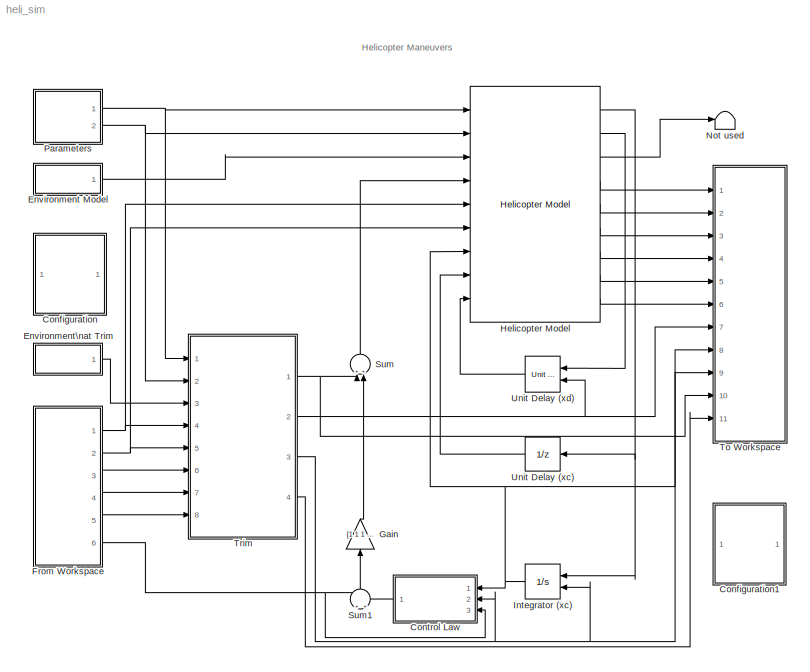
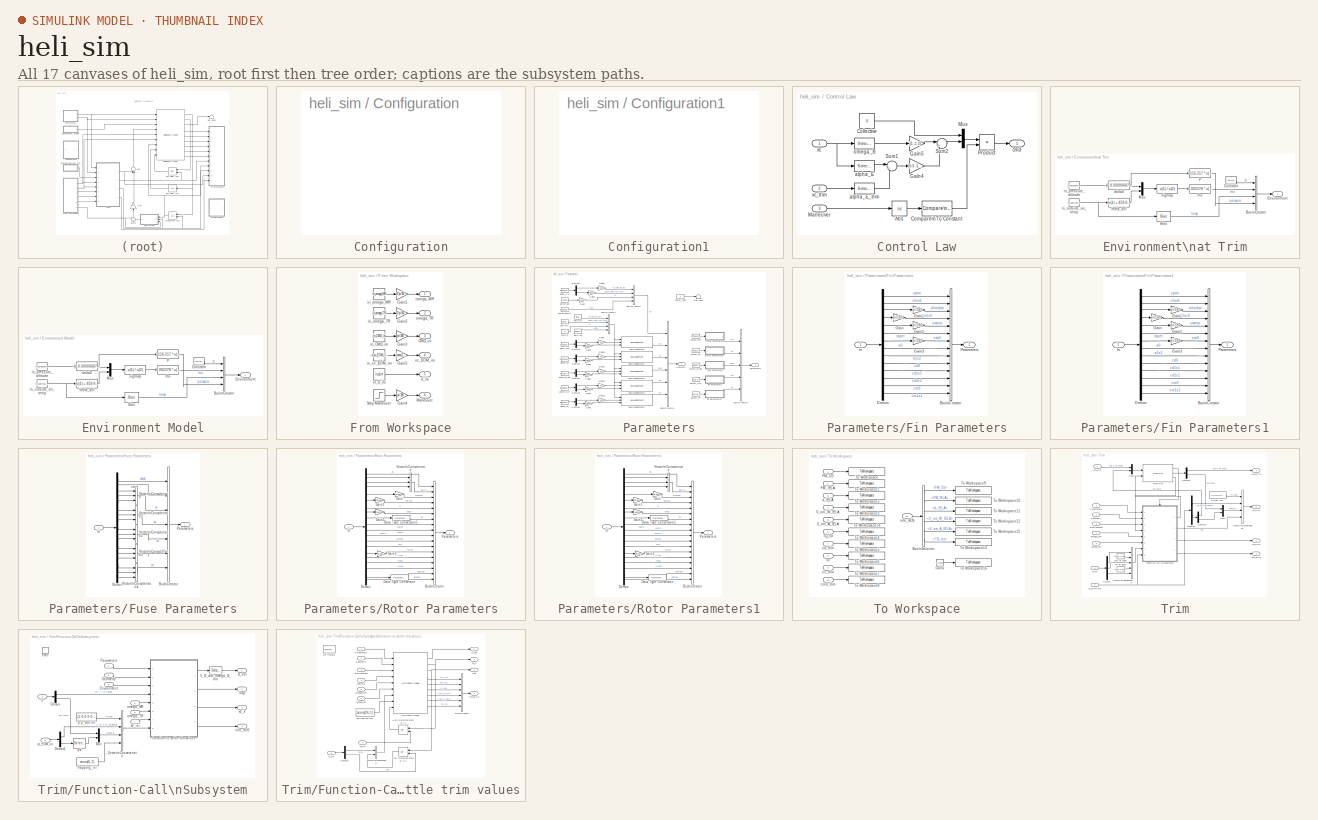
[diagram: thumbnail index - all 17 canvases of the model, root first then tree order]
MODEL heli_sim
KIND model
CONFIG PostLoadFcn = if exist('helicopter_sim.mat', 'file')\n    load helicopter_sim.mat;\nend
BLOCK [SubSystem] Configuration
  FunctionWithSeparateData = off
  MaskDisplay = disp('Double-click\\nto configure\\nthe\\nsimulation')
  MaskHideContents = off
  MaskIconFrame = on
  MaskIconOpaque = on
  MaskIconRotate = none
  MaskIconUnits = autoscale
  MaskPortRotate = default
  MinAlgLoopOccurrences = off
  Opaque = off
  OpenFcn = gui_HelicopterSim;
  Ports = []
  PropExecContextOutsideSubsystem = off
  RTWSystemCode = Auto
  RequestExecContextInheritance = off
  SID = 1
BLOCK [SubSystem] Configuration1
  FunctionWithSeparateData = off
  MaskDisplay = disp('Double-click\\nto display\\nthe\\ngraphs')
  MaskHideContents = off
  MaskIconFrame = on
  MaskIconOpaque = on
  MaskIconRotate = none
  MaskIconUnits = autoscale
  MaskPortRotate = default
  MinAlgLoopOccurrences = off
  Opaque = off
  OpenFcn = graphs_Helicopter_sim;
  Ports = []
  PropExecContextOutsideSubsystem = off
  RTWSystemCode = Auto
  RequestExecContextInheritance = off
  SID = 2
BLOCK [SubSystem] Control Law
  FunctionWithSeparateData = off
  MaskHideContents = off
  MinAlgLoopOccurrences = off
  Opaque = off
  Ports = [3, 1]
  PropExecContextOutsideSubsystem = off
  RTWSystemCode = Auto
  RequestExecContextInheritance = off
  SID = 5
BLOCK [Abs] Control Law/Abs
  SID = 9
  SaturateOnIntegerOverflow = off
BLOCK [Constant] Control Law/Collective
  SID = 10
  Value = 0
BLOCK [Reference] Control Law/Compare\nTo Constant  REF=simulink/Logic and Bit\nOperations/Compare\nTo Constant
  FunctionWithSeparateData = off
  GeneratePreprocessorConditionals = off
  LogicOutDataTypeMode = boolean
  Ports = [1, 1]
  RTWMemSecDataConstants = Inherit from model
  RTWMemSecDataInternal = Inherit from model
  RTWMemSecDataParameters = Inherit from model
  RTWMemSecFuncExecute = Inherit from model
  RTWMemSecFuncInitTerm = Inherit from model
  SID = 11
  ShowPortLabels = FromPortIcon
  SourceBlock = simulink/Logic and Bit\nOperations/Compare\nTo Constant
  SourceType = Compare To Constant
  SystemSampleTime = -1
  ZeroCross = off
  const = 1e-10
  relop = <
BLOCK [Gain] Control Law/Gain4
  Gain = [0.5 -1 4]
  OutDataTypeStr = Inherit: Inherit via internal rule
  ParamDataTypeStr = Inherit: Inherit via internal rule
  SID = 12
  SaturateOnIntegerOverflow = off
BLOCK [Gain] Control Law/Gain5
  Gain = [1 -1 2]
  OutDataTypeStr = Inherit: Inherit via internal rule
  ParamDataTypeStr = Inherit: Inherit via internal rule
  SID = 13
  SaturateOnIntegerOverflow = off
BLOCK [Inport] Control Law/Maneuver
  IconDisplay = Port number
  Port = 3
  SID = 8
BLOCK [Mux] Control Law/Mux
  DisplayOption = bar
  Inputs = 2
  Ports = [2, 1]
  SID = 14
BLOCK [Product] Control Law/Product
  InputSameDT = off
  OutDataTypeStr = Inherit: Inherit via internal rule
  Ports = [2, 1]
  SID = 15
  SaturateOnIntegerOverflow = off
BLOCK [Sum] Control Law/Sum1
  IconShape = round
  InputSameDT = off
  Inputs = |+-
  OutDataTypeStr = Inherit: Inherit via internal rule
  Ports = [2, 1]
  SID = 16
  SaturateOnIntegerOverflow = off
BLOCK [Sum] Control Law/Sum2
  IconShape = round
  InputSameDT = off
  Inputs = |++
  OutDataTypeStr = Inherit: Inherit via internal rule
  Ports = [2, 1]
  SID = 17
  SaturateOnIntegerOverflow = off
BLOCK [Selector] Control Law/alpha_E
  IndexOptions = Index vector (dialog)
  Indices = [18:20]
  InputPortWidth = 26
  OutputSizes = 1
  Ports = [1, 1]
  SID = 18
BLOCK [Selector] Control Law/alpha_E_trim
  IndexOptions = Index vector (dialog)
  Indices = [18:20]
  InputPortWidth = 26
  OutputSizes = 1
  Ports = [1, 1]
  SID = 19
BLOCK [Outport] Control Law/cmd
  IconDisplay = Port number
  SID = 21
BLOCK [Selector] Control Law/omega_B
  IndexOptions = Index vector (dialog)
  Indices = [15:17]
  InputPortWidth = 26
  OutputSizes = 1
  Ports = [1, 1]
  SID = 20
BLOCK [Inport] Control Law/xc
  IconDisplay = Port number
  SID = 6
BLOCK [Inport] Control Law/xc_trim
  IconDisplay = Port number
  Port = 2
  SID = 7
BLOCK [SubSystem] Environment Model
  FunctionWithSeparateData = off
  MaskHideContents = off
  MinAlgLoopOccurrences = off
  Opaque = off
  Ports = [0, 1]
  PropExecContextOutsideSubsystem = off
  RTWSystemCode = Auto
  RequestExecContextInheritance = off
  SID = 36
BLOCK [Bias] Environment Model/Bias
  Bias = 459.67
  SID = 37
  SaturateOnIntegerOverflow = off
BLOCK [BusCreator] Environment Model/Bus\nCreator
  DisplayOption = bar
  NonVirtualBus = on
  OutDataTypeStr = Bus: Environment
  Ports = [4, 1]
  SID = 38
BLOCK [Constant] Environment Model/Constant
  SID = 39
  Value = 32.174
BLOCK [Outport] Environment Model/Environment
  IconDisplay = Port number
  OutDataTypeStr = Bus: Environment
  SID = 48
BLOCK [Mux] Environment Model/Mux
  DisplayOption = bar
  Inputs = 2
  Ports = [2, 1]
  SID = 40
BLOCK [Fcn] Environment Model/P
  Expr = 2116.217 * u(1)
  SID = 41
BLOCK [Fcn] Environment Model/delta0
  Expr = (1-0.000006875*u(1))^5.256
  SID = 42
BLOCK [Constant] Environment Model/in_outside_air_temp
  SID = 43
  Value = in_outside_air_temp
BLOCK [Constant] Environment Model/in_pressure_altitude
  SID = 44
  Value = in_pressure_altitude
BLOCK [Fcn] Environment Model/rho
  Expr = 0.002378 * u(1)
  SID = 45
BLOCK [Fcn] Environment Model/sigmap
  Expr = u(1) / u(2)
  SID = 46
BLOCK [Fcn] Environment Model/theta_act
  Expr = (u(1) + 459.67) / (59 + 459.67)
  SID = 47
BLOCK [SubSystem] Environment\nat Trim
  FunctionWithSeparateData = off
  MaskHideContents = off
  MinAlgLoopOccurrences = off
  Opaque = off
  Ports = [0, 1]
  PropExecContextOutsideSubsystem = off
  RTWSystemCode = Auto
  RequestExecContextInheritance = off
  SID = 23
BLOCK [Bias] Environment\nat Trim/Bias
  Bias = 459.67
  SID = 24
  SaturateOnIntegerOverflow = off
BLOCK [BusCreator] Environment\nat Trim/Bus\nCreator
  DisplayOption = bar
  NonVirtualBus = on
  OutDataTypeStr = Bus: Environment
  Ports = [4, 1]
  SID = 25
BLOCK [Constant] Environment\nat Trim/Constant
  SID = 26
  Value = 32.174
BLOCK [Outport] Environment\nat Trim/Environment
  IconDisplay = Port number
  OutDataTypeStr = Bus: Environment
  SID = 35
BLOCK [Mux] Environment\nat Trim/Mux
  DisplayOption = bar
  Inputs = 2
  Ports = [2, 1]
  SID = 27
BLOCK [Fcn] Environment\nat Trim/P
  Expr = 2116.217 * u(1)
  SID = 28
BLOCK [Fcn] Environment\nat Trim/delta0
  Expr = (1-0.000006875*u(1))^5.256
  SID = 29
BLOCK [Constant] Environment\nat Trim/in_outside_air_temp
  SID = 30
  Value = in_outside_air_temp
BLOCK [Constant] Environment\nat Trim/in_pressure_altitude
  SID = 31
  Value = in_pressure_altitude
BLOCK [Fcn] Environment\nat Trim/rho
  Expr = 0.002378 * u(1)
  SID = 32
BLOCK [Fcn] Environment\nat Trim/sigmap
  Expr = u(1) / u(2)
  SID = 33
BLOCK [Fcn] Environment\nat Trim/theta_act
  Expr = (u(1) + 459.67) / (59 + 459.67)
  SID = 34
BLOCK [SubSystem] From Workspace
  FunctionWithSeparateData = off
  MaskHideContents = off
  MinAlgLoopOccurrences = off
  Opaque = off
  Ports = [0, 6]
  PropExecContextOutsideSubsystem = off
  RTWSystemCode = Auto
  RequestExecContextInheritance = off
  SID = 160
BLOCK [Outport] From Workspace/CMD_ini
  IconDisplay = Port number
  Port = 3
  SID = 174
BLOCK [Gain] From Workspace/Gain1
  Gain = 2*pi/60
  OutDataTypeStr = Inherit: Inherit via internal rule
  ParamDataTypeStr = Inherit: Inherit via internal rule
  SID = 161
  SaturateOnIntegerOverflow = off
BLOCK [Gain] From Workspace/Gain2
  Gain = 2*pi/60
  OutDataTypeStr = Inherit: Inherit via internal rule
  ParamDataTypeStr = Inherit: Inherit via internal rule
  SID = 162
  SaturateOnIntegerOverflow = off
BLOCK [Gain] From Workspace/Gain3
  Gain = pi/180
  OutDataTypeStr = Inherit: Inherit via internal rule
  ParamDataTypeStr = Inherit: Inherit via internal rule
  SID = 163
  SaturateOnIntegerOverflow = off
BLOCK [Gain] From Workspace/Gain4
  Gain = pi/180
  OutDataTypeStr = Inherit: Inherit via internal rule
  ParamDataTypeStr = Inherit: Inherit via internal rule
  SID = 164
  SaturateOnIntegerOverflow = off
BLOCK [Gain] From Workspace/Gain5
  Gain = [ones(1,6) ones(1,6)*pi/180]
  OutDataTypeStr = Inherit: Inherit via internal rule
  ParamDataTypeStr = Inherit: Inherit via internal rule
  SID = 165
  SaturateOnIntegerOverflow = off
BLOCK [Outport] From Workspace/Maneuver
  IconDisplay = Port number
  Port = 6
  SID = 177
BLOCK [Step] From Workspace/Step Maneuver
  After = in_cmd_final_value
  Before = [0 0 0 0]
  SID = 166
  SampleTime = 0
  Time = in_cmd_step_time
BLOCK [Outport] From Workspace/d_ini
  IconDisplay = Port number
  Port = 5
  SID = 176
BLOCK [Constant] From Workspace/in_CMD_ini
  SID = 167
  Value = in_CMD_ini
BLOCK [Constant] From Workspace/in_d_ini
  SID = 168
  Value = in_d_ini
BLOCK [Constant] From Workspace/in_omega_MR
  SID = 169
  Value = in_omega_MR
BLOCK [Constant] From Workspace/in_omega_TR
  SID = 170
  Value = in_omega_TR
BLOCK [Constant] From Workspace/in_xc_EOM_ini
  SID = 171
  Value = in_xc_EOM_ini
BLOCK [Outport] From Workspace/omega_MR
  IconDisplay = Port number
  SID = 172
BLOCK [Outport] From Workspace/omega_TR
  IconDisplay = Port number
  Port = 2
  SID = 173
BLOCK [Outport] From Workspace/xc_EOM_ini
  IconDisplay = Port number
  Port = 4
  SID = 175
BLOCK [Gain] Gain
  Gain = [1 1 1 1]
  OutDataTypeStr = Inherit: Inherit via internal rule
  ParamDataTypeStr = Inherit: Inherit via internal rule
  SID = 178
  SaturateOnIntegerOverflow = off
BLOCK [Reference] Helicopter Model  REF=UAVdesign_net/Vehicle Models/Helicopter Model
  FunctionWithSeparateData = off
  GeneratePreprocessorConditionals = off
  Ports = [9, 9]
  RTWMemSecDataConstants = Inherit from model
  RTWMemSecDataInternal = Inherit from model
  RTWMemSecDataParameters = Inherit from model
  RTWMemSecFuncExecute = Inherit from model
  RTWMemSecFuncInitTerm = Inherit from model
  SID = 179
  ShowPortLabels = FromPortIcon
  SourceBlock = UAVdesign_net/Vehicle Models/Helicopter Model
  SourceType = HelicopterModel
  SystemSampleTime = -1
BLOCK [Integrator] Integrator (xc)
  InitialConditionSource = external
  LimitOutput = on
  LowerSaturationLimit = -[1 1 1 1  1 1 1 1 100 100 100 inf inf inf pi/4 pi/4 pi/4 inf inf inf pi/4 pi/4 pi/4 pi/4 pi/4 pi/4]
  Ports = [2, 1]
  SID = 180
  UpperSaturationLimit = [1 1 1 1  1 1 1 1 100 100 100 inf inf inf pi/4 pi/4 pi/4 inf inf inf pi/4 pi/4 pi/4 pi/4 pi/4 pi/4]
BLOCK [Terminator] Not used
  SID = 181
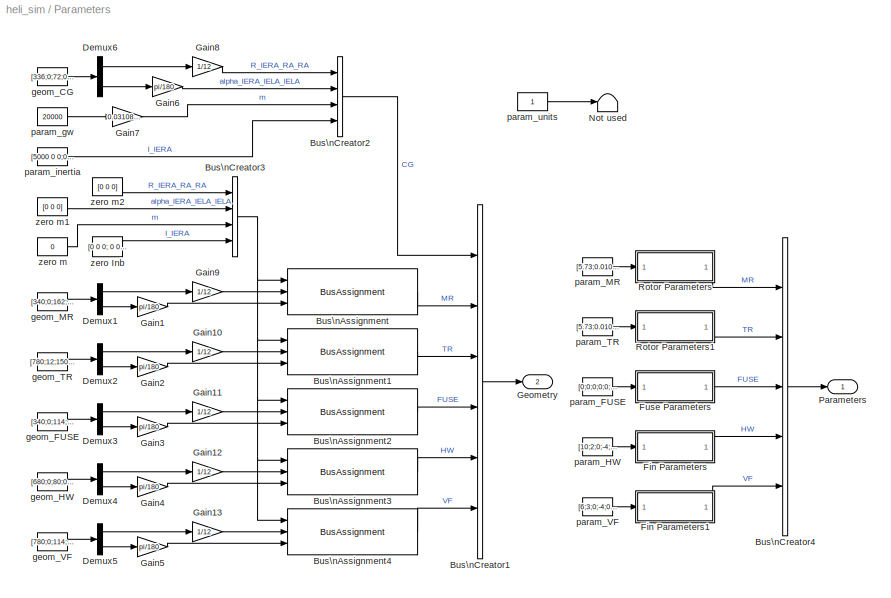
BLOCK [SubSystem] Parameters
  FunctionWithSeparateData = off
  MaskDisplay = port_label('output', 1, 'Parameters')\nport_label('output', 2, 'Geometry')
  MaskHideContents = off
  MaskIconFrame = on
  MaskIconOpaque = on
  MaskIconRotate = none
  MaskIconUnits = autoscale
  MaskInitialization = set_param(gcb, 'LinkStatus', 'none');
  MaskPortRotate = default
  MaskSelfModifiable = on
  MinAlgLoopOccurrences = off
  Opaque = off
  OpenFcn = gui_HelicopterParameters( 'Block', [get_param(gcb, 'Parent') '/' get_param(gcb, 'Name')]);
  Ports = [0, 2]
  PropExecContextOutsideSubsystem = off
  RTWSystemCode = Auto
  RequestExecContextInheritance = off
  SID = 183
BLOCK [BusAssignment] Parameters/Bus\nAssignment
  AssignedSignals = R_IERA_RA_RA,alpha_IERA_IELA_IELA
  Ports = [3, 1]
  SID = 183:1
BLOCK [BusAssignment] Parameters/Bus\nAssignment1
  AssignedSignals = R_IERA_RA_RA,alpha_IERA_IELA_IELA
  Ports = [3, 1]
  SID = 183:2
BLOCK [BusAssignment] Parameters/Bus\nAssignment2
  AssignedSignals = R_IERA_RA_RA,alpha_IERA_IELA_IELA
  Ports = [3, 1]
  SID = 183:3
BLOCK [BusAssignment] Parameters/Bus\nAssignment3
  AssignedSignals = R_IERA_RA_RA,alpha_IERA_IELA_IELA
  Ports = [3, 1]
  SID = 183:4
BLOCK [BusAssignment] Parameters/Bus\nAssignment4
  AssignedSignals = R_IERA_RA_RA,alpha_IERA_IELA_IELA
  Ports = [3, 1]
  SID = 183:5
BLOCK [BusCreator] Parameters/Bus\nCreator1
  DisplayOption = bar
  Inputs = 6
  Ports = [6, 1]
  SID = 183:6
BLOCK [BusCreator] Parameters/Bus\nCreator2
  DisplayOption = bar
  OutDataTypeStr = Bus: GeometryParameters
  Ports = [4, 1]
  SID = 183:7
BLOCK [BusCreator] Parameters/Bus\nCreator3
  DisplayOption = bar
  OutDataTypeStr = Bus: GeometryParameters
  Ports = [4, 1]
  SID = 183:8
BLOCK [BusCreator] Parameters/Bus\nCreator4
  DisplayOption = bar
  Inputs = 5
  Ports = [5, 1]
  SID = 183:9
BLOCK [Demux] Parameters/Demux1
  DisplayOption = bar
  Outputs = 2
  Ports = [1, 2]
  SID = 183:10
BLOCK [Demux] Parameters/Demux2
  DisplayOption = bar
  Outputs = 2
  Ports = [1, 2]
  SID = 183:11
BLOCK [Demux] Parameters/Demux3
  DisplayOption = bar
  Outputs = 2
  Ports = [1, 2]
  SID = 183:12
BLOCK [Demux] Parameters/Demux4
  DisplayOption = bar
  Outputs = 2
  Ports = [1, 2]
  SID = 183:13
BLOCK [Demux] Parameters/Demux5
  DisplayOption = bar
  Outputs = 2
  Ports = [1, 2]
  SID = 183:14
BLOCK [Demux] Parameters/Demux6
  DisplayOption = bar
  Outputs = 2
  Ports = [1, 2]
  SID = 183:15
BLOCK [SubSystem] Parameters/Fin Parameters
  FunctionWithSeparateData = off
  MaskHideContents = off
  MinAlgLoopOccurrences = off
  Opaque = off
  Ports = [1, 1]
  PropExecContextOutsideSubsystem = off
  RTWSystemCode = Auto
  RequestExecContextInheritance = off
  SID = 183:16
BLOCK [BusCreator] Parameters/Fin Parameters/Bus\nCreator
  DisplayOption = bar
  Inputs = 14
  NonVirtualBus = on
  OutDataTypeStr = Bus: FinParameters
  Ports = [14, 1]
  SID = 183:18
BLOCK [Demux] Parameters/Fin Parameters/Demux
  DisplayOption = bar
  Outputs = 14
  Ports = [1, 14]
  SID = 183:19
BLOCK [Gain] Parameters/Fin Parameters/Gain
  Gain = pi/180
  OutDataTypeStr = Inherit: Inherit via internal rule
  ParamDataTypeStr = Inherit: Inherit via internal rule
  SID = 183:20
  SaturateOnIntegerOverflow = off
BLOCK [Gain] Parameters/Fin Parameters/Gain1
  Gain = pi/180
  OutDataTypeStr = Inherit: Inherit via internal rule
  ParamDataTypeStr = Inherit: Inherit via internal rule
  SID = 183:21
  SaturateOnIntegerOverflow = off
BLOCK [Gain] Parameters/Fin Parameters/Gain2
  Gain = pi/180
  OutDataTypeStr = Inherit: Inherit via internal rule
  ParamDataTypeStr = Inherit: Inherit via internal rule
  SID = 183:22
  SaturateOnIntegerOverflow = off
BLOCK [Gain] Parameters/Fin Parameters/Gain3
  Gain = pi/180
  OutDataTypeStr = Inherit: Inherit via internal rule
  ParamDataTypeStr = Inherit: Inherit via internal rule
  SID = 183:23
  SaturateOnIntegerOverflow = off
BLOCK [Inport] Parameters/Fin Parameters/In
  IconDisplay = Port number
  SID = 183:17
BLOCK [Outport] Parameters/Fin Parameters/Parameters
  IconDisplay = Port number
  OutDataTypeStr = Bus: FinParameters
  SID = 183:24
BLOCK [SubSystem] Parameters/Fin Parameters1
  FunctionWithSeparateData = off
  MaskHideContents = off
  MinAlgLoopOccurrences = off
  Opaque = off
  Ports = [1, 1]
  PropExecContextOutsideSubsystem = off
  RTWSystemCode = Auto
  RequestExecContextInheritance = off
  SID = 183:25
BLOCK [BusCreator] Parameters/Fin Parameters1/Bus\nCreator
  DisplayOption = bar
  Inputs = 14
  NonVirtualBus = on
  OutDataTypeStr = Bus: FinParameters
  Ports = [14, 1]
  SID = 183:27
BLOCK [Demux] Parameters/Fin Parameters1/Demux
  DisplayOption = bar
  Outputs = 14
  Ports = [1, 14]
  SID = 183:28
BLOCK [Gain] Parameters/Fin Parameters1/Gain
  Gain = pi/180
  OutDataTypeStr = Inherit: Inherit via internal rule
  ParamDataTypeStr = Inherit: Inherit via internal rule
  SID = 183:29
  SaturateOnIntegerOverflow = off
BLOCK [Gain] Parameters/Fin Parameters1/Gain1
  Gain = pi/180
  OutDataTypeStr = Inherit: Inherit via internal rule
  ParamDataTypeStr = Inherit: Inherit via internal rule
  SID = 183:30
  SaturateOnIntegerOverflow = off
BLOCK [Gain] Parameters/Fin Parameters1/Gain2
  Gain = pi/180
  OutDataTypeStr = Inherit: Inherit via internal rule
  ParamDataTypeStr = Inherit: Inherit via internal rule
  SID = 183:31
  SaturateOnIntegerOverflow = off
BLOCK [Gain] Parameters/Fin Parameters1/Gain3
  Gain = pi/180
  OutDataTypeStr = Inherit: Inherit via internal rule
  ParamDataTypeStr = Inherit: Inherit via internal rule
  SID = 183:32
  SaturateOnIntegerOverflow = off
BLOCK [Inport] Parameters/Fin Parameters1/In
  IconDisplay = Port number
  SID = 183:26
BLOCK [Outport] Parameters/Fin Parameters1/Parameters
  IconDisplay = Port number
  OutDataTypeStr = Bus: FinParameters
  SID = 183:33
BLOCK [SubSystem] Parameters/Fuse Parameters
  FunctionWithSeparateData = off
  MaskHideContents = off
  MinAlgLoopOccurrences = off
  Opaque = off
  Ports = [1, 1]
  PropExecContextOutsideSubsystem = off
  RTWSystemCode = Auto
  RequestExecContextInheritance = off
  SID = 183:34
BLOCK [BusCreator] Parameters/Fuse Parameters/Bus\nCreator
  DisplayOption = bar
  Inputs = 7
  NonVirtualBus = on
  OutDataTypeStr = Bus: FuselageParameters
  Ports = [7, 1]
  SID = 183:36
BLOCK [Demux] Parameters/Fuse Parameters/Demux
  DisplayOption = bar
  Outputs = 17
  Ports = [1, 17]
  SID = 183:37
BLOCK [Inport] Parameters/Fuse Parameters/In
  IconDisplay = Port number
  SID = 183:35
BLOCK [Outport] Parameters/Fuse Parameters/Parameters
  IconDisplay = Port number
  OutDataTypeStr = Bus: FuselageParameters
  SID = 183:43
BLOCK [Concatenate] Parameters/Fuse Parameters/Vector\nConcatenate
  Mode = Vector
  NumInputs = 3
  Ports = [3, 1]
  SID = 183:38
BLOCK [Concatenate] Parameters/Fuse Parameters/Vector\nConcatenate1
  Mode = Vector
  NumInputs = 3
  Ports = [3, 1]
  SID = 183:39
BLOCK [Concatenate] Parameters/Fuse Parameters/Vector\nConcatenate2
  Mode = Vector
  NumInputs = 3
  Ports = [3, 1]
  SID = 183:40
BLOCK [Concatenate] Parameters/Fuse Parameters/Vector\nConcatenate3
  Mode = Vector
  NumInputs = 3
  Ports = [3, 1]
  SID = 183:41
BLOCK [Concatenate] Parameters/Fuse Parameters/Vector\nConcatenate4
  Mode = Vector
  NumInputs = 3
  Ports = [3, 1]
  SID = 183:42
BLOCK [Gain] Parameters/Gain1
  Gain = pi/180
  OutDataTypeStr = Inherit: Inherit via internal rule
  ParamDataTypeStr = Inherit: Inherit via internal rule
  SID = 183:44
  SaturateOnIntegerOverflow = off
BLOCK [Gain] Parameters/Gain10
  Gain = 1/12
  OutDataTypeStr = Inherit: Inherit via internal rule
  ParamDataTypeStr = Inherit: Inherit via internal rule
  SID = 183:45
  SaturateOnIntegerOverflow = off
BLOCK [Gain] Parameters/Gain11
  Gain = 1/12
  OutDataTypeStr = Inherit: Inherit via internal rule
  ParamDataTypeStr = Inherit: Inherit via internal rule
  SID = 183:46
  SaturateOnIntegerOverflow = off
BLOCK [Gain] Parameters/Gain12
  Gain = 1/12
  OutDataTypeStr = Inherit: Inherit via internal rule
  ParamDataTypeStr = Inherit: Inherit via internal rule
  SID = 183:47
  SaturateOnIntegerOverflow = off
BLOCK [Gain] Parameters/Gain13
  Gain = 1/12
  OutDataTypeStr = Inherit: Inherit via internal rule
  ParamDataTypeStr = Inherit: Inherit via internal rule
  SID = 183:48
  SaturateOnIntegerOverflow = off
BLOCK [Gain] Parameters/Gain2
  Gain = pi/180
  OutDataTypeStr = Inherit: Inherit via internal rule
  ParamDataTypeStr = Inherit: Inherit via internal rule
  SID = 183:49
  SaturateOnIntegerOverflow = off
BLOCK [Gain] Parameters/Gain3
  Gain = pi/180
  OutDataTypeStr = Inherit: Inherit via internal rule
  ParamDataTypeStr = Inherit: Inherit via internal rule
  SID = 183:50
  SaturateOnIntegerOverflow = off
BLOCK [Gain] Parameters/Gain4
  Gain = pi/180
  OutDataTypeStr = Inherit: Inherit via internal rule
  ParamDataTypeStr = Inherit: Inherit via internal rule
  SID = 183:51
  SaturateOnIntegerOverflow = off
BLOCK [Gain] Parameters/Gain5
  Gain = pi/180
  OutDataTypeStr = Inherit: Inherit via internal rule
  ParamDataTypeStr = Inherit: Inherit via internal rule
  SID = 183:52
  SaturateOnIntegerOverflow = off
BLOCK [Gain] Parameters/Gain6
  Gain = pi/180
  OutDataTypeStr = Inherit: Inherit via internal rule
  ParamDataTypeStr = Inherit: Inherit via internal rule
  SID = 183:53
  SaturateOnIntegerOverflow = off
BLOCK [Gain] Parameters/Gain7
  Gain = 0.0310809502
  OutDataTypeStr = Inherit: Inherit via internal rule
  ParamDataTypeStr = Inherit: Inherit via internal rule
  SID = 183:54
  SaturateOnIntegerOverflow = off
BLOCK [Gain] Parameters/Gain8
  Gain = 1/12
  OutDataTypeStr = Inherit: Inherit via internal rule
  ParamDataTypeStr = Inherit: Inherit via internal rule
  SID = 183:55
  SaturateOnIntegerOverflow = off
BLOCK [Gain] Parameters/Gain9
  Gain = 1/12
  OutDataTypeStr = Inherit: Inherit via internal rule
  ParamDataTypeStr = Inherit: Inherit via internal rule
  SID = 183:56
  SaturateOnIntegerOverflow = off
BLOCK [Outport] Parameters/Geometry
  IconDisplay = Port number
  Port = 2
  SID = 183:101
BLOCK [Terminator] Parameters/Not used
  SID = 183:57
BLOCK [Outport] Parameters/Parameters
  IconDisplay = Port number
  SID = 183:100
BLOCK [SubSystem] Parameters/Rotor Parameters
  FunctionWithSeparateData = off
  MaskHideContents = off
  MinAlgLoopOccurrences = off
  Opaque = off
  Ports = [1, 1]
  PropExecContextOutsideSubsystem = off
  RTWSystemCode = Auto
  RequestExecContextInheritance = off
  SID = 183:58
BLOCK [BusCreator] Parameters/Rotor Parameters/Bus\nCreator
  DisplayOption = bar
  Inputs = 18
  NonVirtualBus = on
  OutDataTypeStr = Bus: RotorParameters
  Ports = [18, 1]
  SID = 183:60
BLOCK [DataTypeConversion] Parameters/Rotor Parameters/Data Type Conversion
  OutDataTypeStr = int32
  RndMeth = Nearest
  SID = 183:61
  SaturateOnIntegerOverflow = off
BLOCK [DataTypeConversion] Parameters/Rotor Parameters/Data Type Conversion1
  OutDataTypeStr = uint32
  RndMeth = Nearest
  SID = 183:62
  SaturateOnIntegerOverflow = off
BLOCK [Demux] Parameters/Rotor Parameters/Demux
  DisplayOption = bar
  Outputs = 20
  Ports = [1, 20]
  SID = 183:63
BLOCK [Gain] Parameters/Rotor Parameters/Gain
  Gain = pi/180
  OutDataTypeStr = Inherit: Inherit via internal rule
  ParamDataTypeStr = Inherit: Inherit via internal rule
  SID = 183:64
  SaturateOnIntegerOverflow = off
BLOCK [Gain] Parameters/Rotor Parameters/Gain1
  Gain = pi/180
  OutDataTypeStr = Inherit: Inherit via internal rule
  ParamDataTypeStr = Inherit: Inherit via internal rule
  SID = 183:65
  SaturateOnIntegerOverflow = off
BLOCK [Gain] Parameters/Rotor Parameters/Gain2
  Gain = 180/pi
  OutDataTypeStr = Inherit: Inherit via internal rule
  ParamDataTypeStr = Inherit: Inherit via internal rule
  SID = 183:66
  SaturateOnIntegerOverflow = off
BLOCK [Gain] Parameters/Rotor Parameters/Gain3
  Gain = pi/180
  OutDataTypeStr = Inherit: Inherit via internal rule
  ParamDataTypeStr = Inherit: Inherit via internal rule
  SID = 183:67
  SaturateOnIntegerOverflow = off
BLOCK [Inport] Parameters/Rotor Parameters/In
  IconDisplay = Port number
  SID = 183:59
BLOCK [Outport] Parameters/Rotor Parameters/Parameters
  IconDisplay = Port number
  OutDataTypeStr = Bus: RotorParameters
  SID = 183:69
BLOCK [Concatenate] Parameters/Rotor Parameters/Vector\nConcatenate
  Mode = Vector
  NumInputs = 3
  Ports = [3, 1]
  SID = 183:68
BLOCK [SubSystem] Parameters/Rotor Parameters1
  FunctionWithSeparateData = off
  MaskHideContents = off
  MinAlgLoopOccurrences = off
  Opaque = off
  Ports = [1, 1]
  PropExecContextOutsideSubsystem = off
  RTWSystemCode = Auto
  RequestExecContextInheritance = off
  SID = 183:70
BLOCK [BusCreator] Parameters/Rotor Parameters1/Bus\nCreator
  DisplayOption = bar
  Inputs = 18
  NonVirtualBus = on
  OutDataTypeStr = Bus: RotorParameters
  Ports = [18, 1]
  SID = 183:72
BLOCK [DataTypeConversion] Parameters/Rotor Parameters1/Data Type Conversion
  OutDataTypeStr = int32
  RndMeth = Nearest
  SID = 183:73
  SaturateOnIntegerOverflow = off
BLOCK [DataTypeConversion] Parameters/Rotor Parameters1/Data Type Conversion1
  OutDataTypeStr = uint32
  RndMeth = Nearest
  SID = 183:74
  SaturateOnIntegerOverflow = off
BLOCK [Demux] Parameters/Rotor Parameters1/Demux
  DisplayOption = bar
  Outputs = 20
  Ports = [1, 20]
  SID = 183:75
BLOCK [Gain] Parameters/Rotor Parameters1/Gain
  Gain = pi/180
  OutDataTypeStr = Inherit: Inherit via internal rule
  ParamDataTypeStr = Inherit: Inherit via internal rule
  SID = 183:76
  SaturateOnIntegerOverflow = off
BLOCK [Gain] Parameters/Rotor Parameters1/Gain1
  Gain = pi/180
  OutDataTypeStr = Inherit: Inherit via internal rule
  ParamDataTypeStr = Inherit: Inherit via internal rule
  SID = 183:77
  SaturateOnIntegerOverflow = off
BLOCK [Gain] Parameters/Rotor Parameters1/Gain2
  Gain = 180/pi
  OutDataTypeStr = Inherit: Inherit via internal rule
  ParamDataTypeStr = Inherit: Inherit via internal rule
  SID = 183:78
  SaturateOnIntegerOverflow = off
BLOCK [Gain] Parameters/Rotor Parameters1/Gain3
  Gain = pi/180
  OutDataTypeStr = Inherit: Inherit via internal rule
  ParamDataTypeStr = Inherit: Inherit via internal rule
  SID = 183:79
  SaturateOnIntegerOverflow = off
BLOCK [Inport] Parameters/Rotor Parameters1/In
  IconDisplay = Port number
  SID = 183:71
BLOCK [Outport] Parameters/Rotor Parameters1/Parameters
  IconDisplay = Port number
  OutDataTypeStr = Bus: RotorParameters
  SID = 183:81
BLOCK [Concatenate] Parameters/Rotor Parameters1/Vector\nConcatenate
  Mode = Vector
  NumInputs = 3
  Ports = [3, 1]
  SID = 183:80
BLOCK [Constant] Parameters/geom_CG
  SID = 183:82
  Value = [336;0;72;0;0;0]
BLOCK [Constant] Parameters/geom_FUSE
  SID = 183:83
  Value = [340;0;114;0;0;0]
BLOCK [Constant] Parameters/geom_HW
  SID = 183:84
  Value = [680;0;80;0;0;0]
BLOCK [Constant] Parameters/geom_MR
  SID = 183:85
  Value = [340;0;162;0;0;0]
BLOCK [Constant] Parameters/geom_TR
  SID = 183:86
  Value = [780;12;150;90;0;0]
BLOCK [Constant] Parameters/geom_VF
  SID = 183:87
  Value = [780;0;114;-90;0;0]
BLOCK [Constant] Parameters/param_FUSE
  SID = 183:88
  Value = [0;0;0;0;0;0;0;0;0;0;0;0;0;0;0;0;0]
BLOCK [Constant] Parameters/param_HW
  SID = 183:89
  Value = [10;2;0;-4;0;1;8;6.13;0.9682;1.8898;0;-1.8244;0;-0.4037]
BLOCK [Constant] Parameters/param_MR
  SID = 183:90
  Value = [5.73;0.0105;0;0.01325;0;-15;0;0;7;30;2.5;0.95;1;1;-7;0;0.26;0;1;-1]
BLOCK [Constant] Parameters/param_TR
  SID = 183:91
  Value = [5.73;0.0105;0;0.01325;0;-45;0;0;4;6.5;1.25;0.95;1;1;0;0;0.26;0;1;1]
BLOCK [Constant] Parameters/param_VF
  SID = 183:92
  Value = [6;3;0;-4;0;0;8;6.1311;0.9682;1.8898;0;-1.8244;0;-0.4037]
BLOCK [Constant] Parameters/param_gw
  SID = 183:93
  Value = 20000
BLOCK [Constant] Parameters/param_inertia
  SID = 183:94
  Value = [5000 0 0;0 35000 0;0 0 35000]
BLOCK [Constant] Parameters/param_units
  SID = 183:95
BLOCK [Constant] Parameters/zero Inb
  SID = 183:96
  Value = [0 0 0; 0 0 0; 0 0 0]
BLOCK [Constant] Parameters/zero m
  SID = 183:97
  Value = 0
BLOCK [Constant] Parameters/zero m1
  SID = 183:98
  Value = [0 0 0]
BLOCK [Constant] Parameters/zero m2
  SID = 183:99
  Value = [0 0 0]
BLOCK [Sum] Sum
  IconShape = round
  InputSameDT = off
  Inputs = ++|
  OutDataTypeStr = Inherit: Inherit via internal rule
  Ports = [2, 1]
  SID = 184
  SaturateOnIntegerOverflow = off
BLOCK [Sum] Sum1
  IconShape = round
  InputSameDT = off
  Inputs = +|+
  OutDataTypeStr = Inherit: Inherit via internal rule
  Ports = [2, 1]
  SID = 185
  SaturateOnIntegerOverflow = off
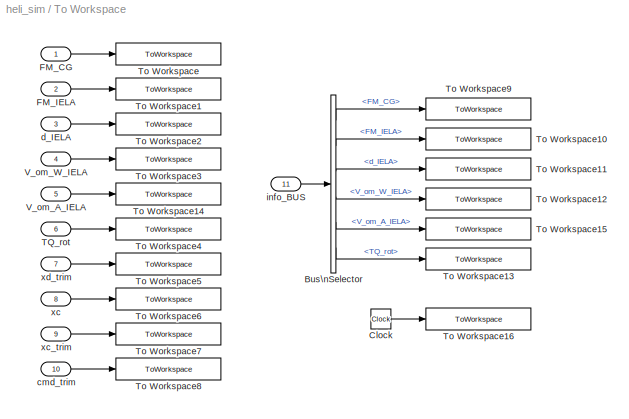
BLOCK [SubSystem] To Workspace
  FunctionWithSeparateData = off
  MaskHideContents = off
  MinAlgLoopOccurrences = off
  Opaque = off
  Ports = [11]
  PropExecContextOutsideSubsystem = off
  RTWSystemCode = Auto
  RequestExecContextInheritance = off
  SID = 187
BLOCK [BusSelector] To Workspace/Bus\nSelector
  OutputSignals = FM_CG,FM_IELA,d_IELA,V_om_W_IELA,V_om_A_IELA,TQ_rot
  Ports = [1, 6]
  SID = 199
BLOCK [Clock] To Workspace/Clock
  Decimation = 1
  SID = 200
BLOCK [Inport] To Workspace/FM_CG
  IconDisplay = Port number
  SID = 188
BLOCK [Inport] To Workspace/FM_IELA
  IconDisplay = Port number
  Port = 2
  SID = 189
BLOCK [Inport] To Workspace/TQ_rot
  IconDisplay = Port number
  Port = 6
  SID = 193
BLOCK [ToWorkspace] To Workspace/To Workspace
  MaxDataPoints = inf
  Ports = [1]
  SID = 201
  SampleTime = -1
  SaveFormat = Array
  VariableName = out_FM_CG
BLOCK [ToWorkspace] To Workspace/To Workspace1
  MaxDataPoints = inf
  Ports = [1]
  SID = 202
  SampleTime = -1
  SaveFormat = Array
  VariableName = out_FM_IELA
BLOCK [ToWorkspace] To Workspace/To Workspace10
  MaxDataPoints = 1
  Ports = [1]
  SID = 203
  SampleTime = -1
  SaveFormat = Array
  VariableName = out_FM_IELA_trim
BLOCK [ToWorkspace] To Workspace/To Workspace11
  MaxDataPoints = 1
  Ports = [1]
  SID = 204
  SampleTime = -1
  SaveFormat = Array
  VariableName = out_d_IELA_trim
BLOCK [ToWorkspace] To Workspace/To Workspace12
  MaxDataPoints = 1
  Ports = [1]
  SID = 205
  SampleTime = -1
  SaveFormat = Array
  VariableName = out_V_om_W_IELA_trim
BLOCK [ToWorkspace] To Workspace/To Workspace13
  MaxDataPoints = 1
  Ports = [1]
  SID = 206
  SampleTime = -1
  SaveFormat = Array
  VariableName = out_TQ_rot_trim
BLOCK [ToWorkspace] To Workspace/To Workspace14
  MaxDataPoints = inf
  Ports = [1]
  SID = 207
  SampleTime = -1
  SaveFormat = Array
  VariableName = out_V_om_A_IELA
BLOCK [ToWorkspace] To Workspace/To Workspace15
  MaxDataPoints = 1
  Ports = [1]
  SID = 208
  SampleTime = -1
  SaveFormat = Array
  VariableName = out_V_om_A_IELA_trim
BLOCK [ToWorkspace] To Workspace/To Workspace16
  MaxDataPoints = inf
  Ports = [1]
  SID = 209
  SampleTime = -1
  SaveFormat = Array
  VariableName = out_time
BLOCK [ToWorkspace] To Workspace/To Workspace2
  MaxDataPoints = inf
  Ports = [1]
  SID = 210
  SampleTime = -1
  SaveFormat = Array
  VariableName = out_d_IELA
BLOCK [ToWorkspace] To Workspace/To Workspace3
  MaxDataPoints = inf
  Ports = [1]
  SID = 211
  SampleTime = -1
  SaveFormat = Array
  VariableName = out_V_om_W_IELA
BLOCK [ToWorkspace] To Workspace/To Workspace4
  MaxDataPoints = inf
  Ports = [1]
  SID = 212
  SampleTime = -1
  SaveFormat = Array
  VariableName = out_TQ_rot
BLOCK [ToWorkspace] To Workspace/To Workspace5
  MaxDataPoints = 1
  Ports = [1]
  SID = 213
  SampleTime = -1
  SaveFormat = Array
  VariableName = out_xd_trim
BLOCK [ToWorkspace] To Workspace/To Workspace6
  MaxDataPoints = inf
  Ports = [1]
  SID = 214
  SampleTime = -1
  SaveFormat = Array
  VariableName = out_xc
BLOCK [ToWorkspace] To Workspace/To Workspace7
  MaxDataPoints = 1
  Ports = [1]
  SID = 215
  SampleTime = -1
  SaveFormat = Array
  VariableName = out_xc_trim
BLOCK [ToWorkspace] To Workspace/To Workspace8
  MaxDataPoints = 1
  Ports = [1]
  SID = 216
  SampleTime = -1
  SaveFormat = Array
  VariableName = out_cmd_trim
BLOCK [ToWorkspace] To Workspace/To Workspace9
  MaxDataPoints = 1
  Ports = [1]
  SID = 217
  SampleTime = -1
  SaveFormat = Array
  VariableName = out_FM_CG_trim
BLOCK [Inport] To Workspace/V_om_A_IELA
  IconDisplay = Port number
  Port = 5
  SID = 192
BLOCK [Inport] To Workspace/V_om_W_IELA
  IconDisplay = Port number
  Port = 4
  SID = 191
BLOCK [Inport] To Workspace/cmd_trim
  IconDisplay = Port number
  Port = 10
  SID = 197
BLOCK [Inport] To Workspace/d_IELA
  IconDisplay = Port number
  Port = 3
  SID = 190
BLOCK [Inport] To Workspace/info_BUS
  IconDisplay = Port number
  Port = 11
  SID = 198
BLOCK [Inport] To Workspace/xc
  IconDisplay = Port number
  Port = 8
  SID = 195
BLOCK [Inport] To Workspace/xc_trim
  IconDisplay = Port number
  Port = 9
  SID = 196
BLOCK [Inport] To Workspace/xd_trim
  IconDisplay = Port number
  Port = 7
  SID = 194
BLOCK [SubSystem] Trim
  FunctionWithSeparateData = off
  MaskHideContents = off
  MinAlgLoopOccurrences = off
  Opaque = off
  Ports = [8, 4]
  PropExecContextOutsideSubsystem = off
  RTWSystemCode = Auto
  RequestExecContextInheritance = off
  SID = 218
BLOCK [Demux] Trim/Demux
  DisplayOption = bar
  Outputs = [3 3 9]
  Ports = [1, 3]
  SID = 227
BLOCK [Demux] Trim/Demux1
  DisplayOption = bar
  Outputs = [9 3]
  Ports = [1, 2]
  SID = 228
BLOCK [Demux] Trim/Demux2
  DisplayOption = bar
  Outputs = [4 2]
  Ports = [1, 2]
  SID = 229
BLOCK [Demux] Trim/Demux3
  DisplayOption = bar
  Outputs = [2 1]
  Ports = [1, 2]
  SID = 230
BLOCK [Inport] Trim/Environment
  IconDisplay = Port number
  Port = 3
  SID = 221
BLOCK [Reference] Trim/Find Trim  REF=UAVdesign_net/Utilities/Numeric\nPerturbation/Find Trim
  NumFInputs = 6
  NumFOutputs = 6
  Ports = [2, 3]
  RunOnce = on
  SID = 231
  SampleTime = -1
  SourceBlock = UAVdesign_net/Utilities/Numeric\nPerturbation/Find Trim
  SourceType = Trim
BLOCK [SubSystem] Trim/Function-Call\nSubsystem
  FunctionWithSeparateData = off
  MaskHideContents = off
  MinAlgLoopOccurrences = off
  Opaque = off
  Ports = [8, 4, 0, 1]
  PropExecContextOutsideSubsystem = off
  RTWSystemCode = Auto
  RequestExecContextInheritance = off
  SID = 232
  TreatAsAtomicUnit = on
BLOCK [Demux] Trim/Function-Call\nSubsystem/Demux
  DisplayOption = bar
  Outputs = [4 2]
  Ports = [1, 2]
  SID = 242
BLOCK [Demux] Trim/Function-Call\nSubsystem/Demux1
  DisplayOption = bar
  Outputs = [9 3]
  Ports = [1, 2]
  SID = 243
BLOCK [Inport] Trim/Function-Call\nSubsystem/Environment
  IconDisplay = Port number
  Port = 3
  SID = 235
BLOCK [Inport] Trim/Function-Call\nSubsystem/Geometry
  IconDisplay = Port number
  Port = 2
  SID = 234
BLOCK [SubSystem] Trim/Function-Call\nSubsystem/Iteration to settle trim values
  FunctionWithSeparateData = off
  MaskHideContents = off
  MinAlgLoopOccurrences = off
  Opaque = off
  Ports = [8, 4]
  PropExecContextOutsideSubsystem = off
  RTWSystemCode = Auto
  RequestExecContextInheritance = off
  SID = 244
  TreatAsAtomicUnit = on
BLOCK [BusCreator] Trim/Function-Call\nSubsystem/Iteration to settle trim values/Bus\nCreator
  DisplayOption = bar
  Inputs = 6
  Ports = [6, 1]
  SID = 253
BLOCK [Demux] Trim/Function-Call\nSubsystem/Iteration to settle trim values/Demux1
  DisplayOption = bar
  Outputs = [20 6]
  Ports = [1, 2]
  SID = 254
BLOCK [Inport] Trim/Function-Call\nSubsystem/Iteration to settle trim values/Environment
  IconDisplay = Port number
  Port = 3
  SID = 247
BLOCK [ForIterator] Trim/Function-Call\nSubsystem/Iteration to settle trim values/For Iterator
  IterationLimit = 20
  Ports = []
  ResetStates = reset
  SID = 255
  ShowIterationPort = off
BLOCK [Inport] Trim/Function-Call\nSubsystem/Iteration to settle trim values/Geometry
  IconDisplay = Port number
  Port = 2
  SID = 246
BLOCK [Reference] Trim/Function-Call\nSubsystem/Iteration to settle trim values/Helicopter Model  REF=UAVdesign_net/Vehicle Models/Helicopter Model
  FunctionWithSeparateData = off
  GeneratePreprocessorConditionals = off
  Ports = [9, 9]
  RTWMemSecDataConstants = Inherit from model
  RTWMemSecDataInternal = Inherit from model
  RTWMemSecDataParameters = Inherit from model
  RTWMemSecFuncExecute = Inherit from model
  RTWMemSecFuncInitTerm = Inherit from model
  SID = 256
  ShowPortLabels = FromPortIcon
  SourceBlock = UAVdesign_net/Vehicle Models/Helicopter Model
  SourceType = HelicopterModel
  SystemSampleTime = -1
BLOCK [Inport] Trim/Function-Call\nSubsystem/Iteration to settle trim values/Parameters
  IconDisplay = Port number
  SID = 245
BLOCK [Reference] Trim/Function-Call\nSubsystem/Iteration to settle trim values/Unit Delay\nExternal IC  REF=simulink/Additional Math\n& Discrete/Additional\nDiscrete/Unit Delay\nExternal IC
  FunctionWithSeparateData = off
  GeneratePreprocessorConditionals = off
  Ports = [2, 1]
  RTWMemSecDataConstants = Inherit from model
  RTWMemSecDataInternal = Inherit from model
  RTWMemSecDataParameters = Inherit from model
  RTWMemSecFuncExecute = Inherit from model
  RTWMemSecFuncInitTerm = Inherit from model
  SID = 257
  ShowPortLabels = FromPortIcon
  SourceBlock = simulink/Additional Math\n& Discrete/Additional\nDiscrete/Unit Delay\nExternal IC
  SourceType = Unit Delay External Initial Condition
  SystemSampleTime = -1
  tsamp = -1
BLOCK [Reference] Trim/Function-Call\nSubsystem/Iteration to settle trim values/Unit Delay\nExternal IC1  REF=simulink/Additional Math\n& Discrete/Additional\nDiscrete/Unit Delay\nExternal IC
  FunctionWithSeparateData = off
  GeneratePreprocessorConditionals = off
  Ports = [2, 1]
  RTWMemSecDataConstants = Inherit from model
  RTWMemSecDataInternal = Inherit from model
  RTWMemSecDataParameters = Inherit from model
  RTWMemSecFuncExecute = Inherit from model
  RTWMemSecFuncInitTerm = Inherit from model
  SID = 258
  ShowPortLabels = FromPortIcon
  SourceBlock = simulink/Additional Math\n& Discrete/Additional\nDiscrete/Unit Delay\nExternal IC
  SourceType = Unit Delay External Initial Condition
  SystemSampleTime = -1
  tsamp = -1
BLOCK [Concatenate] Trim/Function-Call\nSubsystem/Iteration to settle trim values/Vector\nConcatenate
  Mode = Vector
  Ports = [2, 1]
  SID = 259
BLOCK [Constant] Trim/Function-Call\nSubsystem/Iteration to settle trim values/Zero derivatives
  SID = 260
  Value = zeros(26,1)
BLOCK [Inport] Trim/Function-Call\nSubsystem/Iteration to settle trim values/controls
  IconDisplay = Port number
  Port = 4
  SID = 248
BLOCK [Outport] Trim/Function-Call\nSubsystem/Iteration to settle trim values/flap
  IconDisplay = Port number
  Port = 2
  SID = 262
BLOCK [Outport] Trim/Function-Call\nSubsystem/Iteration to settle trim values/info_BUS
  IconDisplay = Port number
  Port = 4
  SID = 264
BLOCK [Inport] Trim/Function-Call\nSubsystem/Iteration to settle trim values/omega_MR
  IconDisplay = Port number
  Port = 5
  SID = 249
BLOCK [Inport] Trim/Function-Call\nSubsystem/Iteration to settle trim values/omega_TR
  IconDisplay = Port number
  Port = 6
  SID = 250
BLOCK [Outport] Trim/Function-Call\nSubsystem/Iteration to settle trim values/xc_dot
  IconDisplay = Port number
  SID = 261
BLOCK [Inport] Trim/Function-Call\nSubsystem/Iteration to settle trim values/xc_ini
  IconDisplay = Port number
  Port = 8
  SID = 252
BLOCK [Inport] Trim/Function-Call\nSubsystem/Iteration to settle trim values/xd_ini
  IconDisplay = Port number
  Port = 7
  SID = 251
BLOCK [Outport] Trim/Function-Call\nSubsystem/Iteration to settle trim values/xd_k
  IconDisplay = Port number
  Port = 3
  SID = 263
BLOCK [Mux] Trim/Function-Call\nSubsystem/Mux
  DisplayOption = bar
  Inputs = 2
  Ports = [2, 1]
  SID = 265
BLOCK [Inport] Trim/Function-Call\nSubsystem/Parameters
  IconDisplay = Port number
  SID = 233
BLOCK [Selector] Trim/Function-Call\nSubsystem/V_B_dot, omega_B_dot
  IndexOptions = Index vector (dialog)
  Indices = [9:11 15:17]
  InputPortWidth = 26
  OutputSizes = 1
  Ports = [1, 1]
  SID = 266
BLOCK [Concatenate] Trim/Function-Call\nSubsystem/Vector\nConcatenate
  Mode = Vector
  NumInputs = 4
  Ports = [4, 1]
  SID = 267
BLOCK [Inport] Trim/Function-Call\nSubsystem/c
  IconDisplay = Port number
  Port = 4
  SID = 236
BLOCK [TriggerPort] Trim/Function-Call\nSubsystem/exec
  Ports = []
  SID = 241
  TriggerType = function-call
BLOCK [Outport] Trim/Function-Call\nSubsystem/flap
  IconDisplay = Port number
  Port = 2
  SID = 272
BLOCK [Constant] Trim/Function-Call\nSubsystem/flapping_ini
  SID = 268
  Value = zeros(6,1)
BLOCK [Outport] Trim/Function-Call\nSubsystem/info_BUS
  IconDisplay = Port number
  Port = 4
  SID = 274
BLOCK [Inport] Trim/Function-Call\nSubsystem/omega_MR
  IconDisplay = Port number
  Port = 5
  SID = 237
BLOCK [Inport] Trim/Function-Call\nSubsystem/omega_TR
  IconDisplay = Port number
  Port = 6
  SID = 238
BLOCK [Constant] Trim/Function-Call\nSubsystem/p  p_dot ini
  SID = 269
  Value = [1 0 0 0  0 0 0 0]
BLOCK [Selector] Trim/Function-Call\nSubsystem/psi
  IndexOptions = Index vector (dialog)
  Indices = [3]
  InputPortWidth = 3
  OutputSizes = 1
  Ports = [1, 1]
  SID = 270
BLOCK [Inport] Trim/Function-Call\nSubsystem/xc_EOM_ini
  IconDisplay = Port number
  Port = 8
  SID = 240
BLOCK [Outport] Trim/Function-Call\nSubsystem/xc_dot
  IconDisplay = Port number
  SID = 271
BLOCK [Inport] Trim/Function-Call\nSubsystem/xd_ini
  IconDisplay = Port number
  Port = 7
  SID = 239
BLOCK [Outport] Trim/Function-Call\nSubsystem/xd_k
  IconDisplay = Port number
  Port = 3
  SID = 273
BLOCK [Inport] Trim/Geometry
  IconDisplay = Port number
  Port = 2
  SID = 220
BLOCK [Constant] Trim/MR bt eps0
  SID = 275
  Value = [0.97 0.0018]
BLOCK [Mux] Trim/Mux1
  DisplayOption = bar
  Inputs = 2
  Ports = [2, 1]
  SID = 276
BLOCK [Mux] Trim/Mux2
  DisplayOption = bar
  Inputs = 2
  Ports = [2, 1]
  SID = 277
BLOCK [Inport] Trim/Parameters
  IconDisplay = Port number
  SID = 219
BLOCK [Constant] Trim/TR bt eps0
  SID = 278
  Value = [0.97 0.0018]
BLOCK [Concatenate] Trim/Vector\nConcatenate
  Mode = Vector
  NumInputs = 5
  Ports = [5, 1]
  SID = 279
BLOCK [Concatenate] Trim/Vector\nConcatenate2
  Mode = Vector
  NumInputs = 4
  Ports = [4, 1]
  SID = 280
BLOCK [Inport] Trim/cmd_ini
  IconDisplay = Port number
  Port = 6
  SID = 224
BLOCK [Outport] Trim/cmd_trim
  IconDisplay = Port number
  SID = 282
BLOCK [Inport] Trim/d_ini
  IconDisplay = Port number
  Port = 8
  SID = 226
BLOCK [Outport] Trim/info_BUS
  IconDisplay = Port number
  Port = 4
  SID = 285
BLOCK [Inport] Trim/omega_MR
  IconDisplay = Port number
  Port = 4
  SID = 222
BLOCK [Inport] Trim/omega_TR
  IconDisplay = Port number
  Port = 5
  SID = 223
BLOCK [Constant] Trim/p  p_dot ini1
  SID = 281
  Value = [1 0 0 0  0 0 0 0]
BLOCK [Inport] Trim/xc_EOM_ini
  IconDisplay = Port number
  Port = 7
  SID = 225
BLOCK [Outport] Trim/xc_trim
  IconDisplay = Port number
  Port = 3
  SID = 284
BLOCK [Outport] Trim/xd_trim
  IconDisplay = Port number
  Port = 2
  SID = 283
BLOCK [UnitDelay] Unit Delay (xc)
  SID = 286
  SampleTime = 1/250
  X0 = zeros(26,1)
BLOCK [Reference] Unit Delay (xd)  REF=simulink/Additional Math\n& Discrete/Additional\nDiscrete/Unit Delay\nExternal IC
  FunctionWithSeparateData = off
  GeneratePreprocessorConditionals = off
  Ports = [2, 1]
  RTWMemSecDataConstants = Inherit from model
  RTWMemSecDataInternal = Inherit from model
  RTWMemSecDataParameters = Inherit from model
  RTWMemSecFuncExecute = Inherit from model
  RTWMemSecFuncInitTerm = Inherit from model
  SID = 287
  ShowPortLabels = FromPortIcon
  SourceBlock = simulink/Additional Math\n& Discrete/Additional\nDiscrete/Unit Delay\nExternal IC
  SourceType = Unit Delay External Initial Condition
  SystemSampleTime = -1
  tsamp = 1/250
ANNOTATION (root): Helicopter Maneuvers
LINE Control Law/Abs:1 -> Control Law/Compare\nTo Constant:1
LINE Control Law/Collective:1 -> Control Law/Mux:1
LINE Control Law/Compare\nTo Constant:1 -> Control Law/Product:2
LINE Control Law/Gain4:1 -> Control Law/Sum2:2
LINE Control Law/Gain5:1 -> Control Law/Sum2:1
LINE Control Law/Maneuver:1 -> Control Law/Abs:1
LINE Control Law/Mux:1 -> Control Law/Product:1
LINE Control Law/Product:1 -> Control Law/cmd:1
LINE Control Law/Sum1:1 -> Control Law/Gain4:1
LINE Control Law/Sum2:1 -> Control Law/Mux:2
LINE Control Law/alpha_E:1 -> Control Law/Sum1:1
LINE Control Law/alpha_E_trim:1 -> Control Law/Sum1:2
LINE Control Law/omega_B:1 -> Control Law/Gain5:1
NET Control Law/xc:1 -> Control Law/alpha_E:1, Control Law/omega_B:1
LINE Control Law/xc_trim:1 -> Control Law/alpha_E_trim:1
LINE Control Law:1 -> Sum1:2
LINE Environment Model/Bias:1 -> Environment Model/Bus\nCreator:3
LINE Environment Model/Bus\nCreator:1 -> Environment Model/Environment:1
LINE Environment Model/Constant:1 -> Environment Model/Bus\nCreator:1
LINE Environment Model/Mux:1 -> Environment Model/sigmap:1
LINE Environment Model/P:1 -> Environment Model/Bus\nCreator:4
NET Environment Model/delta0:1 -> Environment Model/Mux:1, Environment Model/P:1
NET Environment Model/in_outside_air_temp:1 -> Environment Model/Bias:1, Environment Model/theta_act:1
LINE Environment Model/in_pressure_altitude:1 -> Environment Model/delta0:1
LINE Environment Model/rho:1 -> Environment Model/Bus\nCreator:2
LINE Environment Model/sigmap:1 -> Environment Model/rho:1
LINE Environment Model/theta_act:1 -> Environment Model/Mux:2
LINE Environment Model:1 -> Helicopter Model:3
LINE Environment\nat Trim/Bias:1 -> Environment\nat Trim/Bus\nCreator:3
LINE Environment\nat Trim/Bus\nCreator:1 -> Environment\nat Trim/Environment:1
LINE Environment\nat Trim/Constant:1 -> Environment\nat Trim/Bus\nCreator:1
LINE Environment\nat Trim/Mux:1 -> Environment\nat Trim/sigmap:1
LINE Environment\nat Trim/P:1 -> Environment\nat Trim/Bus\nCreator:4
NET Environment\nat Trim/delta0:1 -> Environment\nat Trim/Mux:1, Environment\nat Trim/P:1
NET Environment\nat Trim/in_outside_air_temp:1 -> Environment\nat Trim/Bias:1, Environment\nat Trim/theta_act:1
LINE Environment\nat Trim/in_pressure_altitude:1 -> Environment\nat Trim/delta0:1
LINE Environment\nat Trim/rho:1 -> Environment\nat Trim/Bus\nCreator:2
LINE Environment\nat Trim/sigmap:1 -> Environment\nat Trim/rho:1
LINE Environment\nat Trim/theta_act:1 -> Environment\nat Trim/Mux:2
LINE Environment\nat Trim:1 -> Trim:3
LINE From Workspace/Gain1:1 -> From Workspace/omega_MR:1
LINE From Workspace/Gain2:1 -> From Workspace/omega_TR:1
LINE From Workspace/Gain3:1 -> From Workspace/CMD_ini:1
LINE From Workspace/Gain4:1 -> From Workspace/Maneuver:1
LINE From Workspace/Gain5:1 -> From Workspace/xc_EOM_ini:1
LINE From Workspace/Step Maneuver:1 -> From Workspace/Gain4:1
LINE From Workspace/in_CMD_ini:1 -> From Workspace/Gain3:1
LINE From Workspace/in_d_ini:1 -> From Workspace/d_ini:1
LINE From Workspace/in_omega_MR:1 -> From Workspace/Gain1:1
LINE From Workspace/in_omega_TR:1 -> From Workspace/Gain2:1
LINE From Workspace/in_xc_EOM_ini:1 -> From Workspace/Gain5:1
NET From Workspace:1 -> Helicopter Model:5, Trim:4
NET From Workspace:2 -> Helicopter Model:6, Trim:5
LINE From Workspace:3 -> Trim:6
LINE From Workspace:4 -> Trim:7
LINE From Workspace:5 -> Trim:8
NET From Workspace:6 -> Control Law:3, Sum1:1
LINE Gain:1 -> Sum:2
NET Helicopter Model:1 -> Integrator (xc):1, Unit Delay (xc):1
LINE Helicopter Model:2 -> Unit Delay (xd):1
LINE Helicopter Model:3 -> Not used:1
LINE Helicopter Model:4 -> To Workspace:1
LINE Helicopter Model:5 -> To Workspace:2
LINE Helicopter Model:6 -> To Workspace:3
LINE Helicopter Model:7 -> To Workspace:4
LINE Helicopter Model:8 -> To Workspace:5
LINE Helicopter Model:9 -> To Workspace:6
NET Integrator (xc):1 -> Control Law:1, Helicopter Model:7, To Workspace:8
LINE Parameters/Bus\nAssignment1:1 -> Parameters/Bus\nCreator1:3
LINE Parameters/Bus\nAssignment2:1 -> Parameters/Bus\nCreator1:4
LINE Parameters/Bus\nAssignment3:1 -> Parameters/Bus\nCreator1:5
LINE Parameters/Bus\nAssignment4:1 -> Parameters/Bus\nCreator1:6
LINE Parameters/Bus\nAssignment:1 -> Parameters/Bus\nCreator1:2
LINE Parameters/Bus\nCreator1:1 -> Parameters/Geometry:1
LINE Parameters/Bus\nCreator2:1 -> Parameters/Bus\nCreator1:1
NET Parameters/Bus\nCreator3:1 -> Parameters/Bus\nAssignment1:1, Parameters/Bus\nAssignment2:1, Parameters/Bus\nAssignment3:1, Parameters/Bus\nAssignment4:1, Parameters/Bus\nAssignment:1
LINE Parameters/Bus\nCreator4:1 -> Parameters/Parameters:1
LINE Parameters/Demux1:1 -> Parameters/Gain9:1
LINE Parameters/Demux1:2 -> Parameters/Gain1:1
LINE Parameters/Demux2:1 -> Parameters/Gain10:1
LINE Parameters/Demux2:2 -> Parameters/Gain2:1
LINE Parameters/Demux3:1 -> Parameters/Gain11:1
LINE Parameters/Demux3:2 -> Parameters/Gain3:1
LINE Parameters/Demux4:1 -> Parameters/Gain12:1
LINE Parameters/Demux4:2 -> Parameters/Gain4:1
LINE Parameters/Demux5:1 -> Parameters/Gain13:1
LINE Parameters/Demux5:2 -> Parameters/Gain5:1
LINE Parameters/Demux6:1 -> Parameters/Gain8:1
LINE Parameters/Demux6:2 -> Parameters/Gain6:1
LINE Parameters/Fin Parameters/Bus\nCreator:1 -> Parameters/Fin Parameters/Parameters:1
LINE Parameters/Fin Parameters/Demux:1 -> Parameters/Fin Parameters/Bus\nCreator:1
LINE Parameters/Fin Parameters/Demux:10 -> Parameters/Fin Parameters/Bus\nCreator:10
LINE Parameters/Fin Parameters/Demux:11 -> Parameters/Fin Parameters/Bus\nCreator:11
LINE Parameters/Fin Parameters/Demux:12 -> Parameters/Fin Parameters/Bus\nCreator:12
LINE Parameters/Fin Parameters/Demux:13 -> Parameters/Fin Parameters/Bus\nCreator:13
LINE Parameters/Fin Parameters/Demux:14 -> Parameters/Fin Parameters/Bus\nCreator:14
LINE Parameters/Fin Parameters/Demux:2 -> Parameters/Fin Parameters/Bus\nCreator:2
LINE Parameters/Fin Parameters/Demux:3 -> Parameters/Fin Parameters/Gain2:1
LINE Parameters/Fin Parameters/Demux:4 -> Parameters/Fin Parameters/Gain:1
LINE Parameters/Fin Parameters/Demux:5 -> Parameters/Fin Parameters/Gain1:1
LINE Parameters/Fin Parameters/Demux:6 -> Parameters/Fin Parameters/Bus\nCreator:6
LINE Parameters/Fin Parameters/Demux:7 -> Parameters/Fin Parameters/Gain3:1
LINE Parameters/Fin Parameters/Demux:8 -> Parameters/Fin Parameters/Bus\nCreator:8
LINE Parameters/Fin Parameters/Demux:9 -> Parameters/Fin Parameters/Bus\nCreator:9
LINE Parameters/Fin Parameters/Gain1:1 -> Parameters/Fin Parameters/Bus\nCreator:5
LINE Parameters/Fin Parameters/Gain2:1 -> Parameters/Fin Parameters/Bus\nCreator:3
LINE Parameters/Fin Parameters/Gain3:1 -> Parameters/Fin Parameters/Bus\nCreator:7
LINE Parameters/Fin Parameters/Gain:1 -> Parameters/Fin Parameters/Bus\nCreator:4
LINE Parameters/Fin Parameters/In:1 -> Parameters/Fin Parameters/Demux:1
LINE Parameters/Fin Parameters1/Bus\nCreator:1 -> Parameters/Fin Parameters1/Parameters:1
LINE Parameters/Fin Parameters1/Demux:1 -> Parameters/Fin Parameters1/Bus\nCreator:1
LINE Parameters/Fin Parameters1/Demux:10 -> Parameters/Fin Parameters1/Bus\nCreator:10
LINE Parameters/Fin Parameters1/Demux:11 -> Parameters/Fin Parameters1/Bus\nCreator:11
LINE Parameters/Fin Parameters1/Demux:12 -> Parameters/Fin Parameters1/Bus\nCreator:12
LINE Parameters/Fin Parameters1/Demux:13 -> Parameters/Fin Parameters1/Bus\nCreator:13
LINE Parameters/Fin Parameters1/Demux:14 -> Parameters/Fin Parameters1/Bus\nCreator:14
LINE Parameters/Fin Parameters1/Demux:2 -> Parameters/Fin Parameters1/Bus\nCreator:2
LINE Parameters/Fin Parameters1/Demux:3 -> Parameters/Fin Parameters1/Gain2:1
LINE Parameters/Fin Parameters1/Demux:4 -> Parameters/Fin Parameters1/Gain:1
LINE Parameters/Fin Parameters1/Demux:5 -> Parameters/Fin Parameters1/Gain1:1
LINE Parameters/Fin Parameters1/Demux:6 -> Parameters/Fin Parameters1/Bus\nCreator:6
LINE Parameters/Fin Parameters1/Demux:7 -> Parameters/Fin Parameters1/Gain3:1
LINE Parameters/Fin Parameters1/Demux:8 -> Parameters/Fin Parameters1/Bus\nCreator:8
LINE Parameters/Fin Parameters1/Demux:9 -> Parameters/Fin Parameters1/Bus\nCreator:9
LINE Parameters/Fin Parameters1/Gain1:1 -> Parameters/Fin Parameters1/Bus\nCreator:5
LINE Parameters/Fin Parameters1/Gain2:1 -> Parameters/Fin Parameters1/Bus\nCreator:3
LINE Parameters/Fin Parameters1/Gain3:1 -> Parameters/Fin Parameters1/Bus\nCreator:7
LINE Parameters/Fin Parameters1/Gain:1 -> Parameters/Fin Parameters1/Bus\nCreator:4
LINE Parameters/Fin Parameters1/In:1 -> Parameters/Fin Parameters1/Demux:1
LINE Parameters/Fin Parameters1:1 -> Parameters/Bus\nCreator4:5
LINE Parameters/Fin Parameters:1 -> Parameters/Bus\nCreator4:4
LINE Parameters/Fuse Parameters/Bus\nCreator:1 -> Parameters/Fuse Parameters/Parameters:1
LINE Parameters/Fuse Parameters/Demux:1 -> Parameters/Fuse Parameters/Bus\nCreator:1
LINE Parameters/Fuse Parameters/Demux:10 -> Parameters/Fuse Parameters/Vector\nConcatenate2:2
LINE Parameters/Fuse Parameters/Demux:11 -> Parameters/Fuse Parameters/Vector\nConcatenate2:3
LINE Parameters/Fuse Parameters/Demux:12 -> Parameters/Fuse Parameters/Vector\nConcatenate3:1
LINE Parameters/Fuse Parameters/Demux:13 -> Parameters/Fuse Parameters/Vector\nConcatenate3:2
LINE Parameters/Fuse Parameters/Demux:14 -> Parameters/Fuse Parameters/Vector\nConcatenate3:3
LINE Parameters/Fuse Parameters/Demux:15 -> Parameters/Fuse Parameters/Vector\nConcatenate4:1
LINE Parameters/Fuse Parameters/Demux:16 -> Parameters/Fuse Parameters/Vector\nConcatenate4:2
LINE Parameters/Fuse Parameters/Demux:17 -> Parameters/Fuse Parameters/Vector\nConcatenate4:3
LINE Parameters/Fuse Parameters/Demux:2 -> Parameters/Fuse Parameters/Bus\nCreator:2
LINE Parameters/Fuse Parameters/Demux:3 -> Parameters/Fuse Parameters/Vector\nConcatenate:1
LINE Parameters/Fuse Parameters/Demux:4 -> Parameters/Fuse Parameters/Vector\nConcatenate:2
LINE Parameters/Fuse Parameters/Demux:5 -> Parameters/Fuse Parameters/Vector\nConcatenate:3
LINE Parameters/Fuse Parameters/Demux:6 -> Parameters/Fuse Parameters/Vector\nConcatenate1:1
LINE Parameters/Fuse Parameters/Demux:7 -> Parameters/Fuse Parameters/Vector\nConcatenate1:2
LINE Parameters/Fuse Parameters/Demux:8 -> Parameters/Fuse Parameters/Vector\nConcatenate1:3
LINE Parameters/Fuse Parameters/Demux:9 -> Parameters/Fuse Parameters/Vector\nConcatenate2:1
LINE Parameters/Fuse Parameters/In:1 -> Parameters/Fuse Parameters/Demux:1
LINE Parameters/Fuse Parameters/Vector\nConcatenate1:1 -> Parameters/Fuse Parameters/Bus\nCreator:4
LINE Parameters/Fuse Parameters/Vector\nConcatenate2:1 -> Parameters/Fuse Parameters/Bus\nCreator:5
LINE Parameters/Fuse Parameters/Vector\nConcatenate3:1 -> Parameters/Fuse Parameters/Bus\nCreator:6
LINE Parameters/Fuse Parameters/Vector\nConcatenate4:1 -> Parameters/Fuse Parameters/Bus\nCreator:7
LINE Parameters/Fuse Parameters/Vector\nConcatenate:1 -> Parameters/Fuse Parameters/Bus\nCreator:3
LINE Parameters/Fuse Parameters:1 -> Parameters/Bus\nCreator4:3
LINE Parameters/Gain10:1 -> Parameters/Bus\nAssignment1:2
LINE Parameters/Gain11:1 -> Parameters/Bus\nAssignment2:2
LINE Parameters/Gain12:1 -> Parameters/Bus\nAssignment3:2
LINE Parameters/Gain13:1 -> Parameters/Bus\nAssignment4:2
LINE Parameters/Gain1:1 -> Parameters/Bus\nAssignment:3
LINE Parameters/Gain2:1 -> Parameters/Bus\nAssignment1:3
LINE Parameters/Gain3:1 -> Parameters/Bus\nAssignment2:3
LINE Parameters/Gain4:1 -> Parameters/Bus\nAssignment3:3
LINE Parameters/Gain5:1 -> Parameters/Bus\nAssignment4:3
LINE Parameters/Gain6:1 -> Parameters/Bus\nCreator2:2
LINE Parameters/Gain7:1 -> Parameters/Bus\nCreator2:3
LINE Parameters/Gain8:1 -> Parameters/Bus\nCreator2:1
LINE Parameters/Gain9:1 -> Parameters/Bus\nAssignment:2
LINE Parameters/Rotor Parameters/Bus\nCreator:1 -> Parameters/Rotor Parameters/Parameters:1
LINE Parameters/Rotor Parameters/Data Type Conversion1:1 -> Parameters/Rotor Parameters/Bus\nCreator:7
LINE Parameters/Rotor Parameters/Data Type Conversion:1 -> Parameters/Rotor Parameters/Bus\nCreator:17
LINE Parameters/Rotor Parameters/Demux:1 -> Parameters/Rotor Parameters/Bus\nCreator:1
LINE Parameters/Rotor Parameters/Demux:10 -> Parameters/Rotor Parameters/Bus\nCreator:8
LINE Parameters/Rotor Parameters/Demux:11 -> Parameters/Rotor Parameters/Bus\nCreator:9
LINE Parameters/Rotor Parameters/Demux:12 -> Parameters/Rotor Parameters/Bus\nCreator:10
LINE Parameters/Rotor Parameters/Demux:13 -> Parameters/Rotor Parameters/Bus\nCreator:11
LINE Parameters/Rotor Parameters/Demux:14 -> Parameters/Rotor Parameters/Bus\nCreator:12
LINE Parameters/Rotor Parameters/Demux:15 -> Parameters/Rotor Parameters/Gain3:1
LINE Parameters/Rotor Parameters/Demux:16 -> Parameters/Rotor Parameters/Bus\nCreator:14
LINE Parameters/Rotor Parameters/Demux:17 -> Parameters/Rotor Parameters/Bus\nCreator:15
LINE Parameters/Rotor Parameters/Demux:18 -> Parameters/Rotor Parameters/Bus\nCreator:16
LINE Parameters/Rotor Parameters/Demux:19 -> Parameters/Rotor Parameters/Data Type Conversion:1
LINE Parameters/Rotor Parameters/Demux:2 -> Parameters/Rotor Parameters/Vector\nConcatenate:1
LINE Parameters/Rotor Parameters/Demux:20 -> Parameters/Rotor Parameters/Bus\nCreator:18
LINE Parameters/Rotor Parameters/Demux:3 -> Parameters/Rotor Parameters/Vector\nConcatenate:2
LINE Parameters/Rotor Parameters/Demux:4 -> Parameters/Rotor Parameters/Vector\nConcatenate:3
LINE Parameters/Rotor Parameters/Demux:5 -> Parameters/Rotor Parameters/Gain:1
LINE Parameters/Rotor Parameters/Demux:6 -> Parameters/Rotor Parameters/Gain1:1
LINE Parameters/Rotor Parameters/Demux:7 -> Parameters/Rotor Parameters/Bus\nCreator:5
LINE Parameters/Rotor Parameters/Demux:8 -> Parameters/Rotor Parameters/Gain2:1
LINE Parameters/Rotor Parameters/Demux:9 -> Parameters/Rotor Parameters/Data Type Conversion1:1
LINE Parameters/Rotor Parameters/Gain1:1 -> Parameters/Rotor Parameters/Bus\nCreator:4
LINE Parameters/Rotor Parameters/Gain2:1 -> Parameters/Rotor Parameters/Bus\nCreator:6
LINE Parameters/Rotor Parameters/Gain3:1 -> Parameters/Rotor Parameters/Bus\nCreator:13
LINE Parameters/Rotor Parameters/Gain:1 -> Parameters/Rotor Parameters/Bus\nCreator:3
LINE Parameters/Rotor Parameters/In:1 -> Parameters/Rotor Parameters/Demux:1
LINE Parameters/Rotor Parameters/Vector\nConcatenate:1 -> Parameters/Rotor Parameters/Bus\nCreator:2
LINE Parameters/Rotor Parameters1/Bus\nCreator:1 -> Parameters/Rotor Parameters1/Parameters:1
LINE Parameters/Rotor Parameters1/Data Type Conversion1:1 -> Parameters/Rotor Parameters1/Bus\nCreator:7
LINE Parameters/Rotor Parameters1/Data Type Conversion:1 -> Parameters/Rotor Parameters1/Bus\nCreator:17
LINE Parameters/Rotor Parameters1/Demux:1 -> Parameters/Rotor Parameters1/Bus\nCreator:1
LINE Parameters/Rotor Parameters1/Demux:10 -> Parameters/Rotor Parameters1/Bus\nCreator:8
LINE Parameters/Rotor Parameters1/Demux:11 -> Parameters/Rotor Parameters1/Bus\nCreator:9
LINE Parameters/Rotor Parameters1/Demux:12 -> Parameters/Rotor Parameters1/Bus\nCreator:10
LINE Parameters/Rotor Parameters1/Demux:13 -> Parameters/Rotor Parameters1/Bus\nCreator:11
LINE Parameters/Rotor Parameters1/Demux:14 -> Parameters/Rotor Parameters1/Bus\nCreator:12
LINE Parameters/Rotor Parameters1/Demux:15 -> Parameters/Rotor Parameters1/Gain3:1
LINE Parameters/Rotor Parameters1/Demux:16 -> Parameters/Rotor Parameters1/Bus\nCreator:14
LINE Parameters/Rotor Parameters1/Demux:17 -> Parameters/Rotor Parameters1/Bus\nCreator:15
LINE Parameters/Rotor Parameters1/Demux:18 -> Parameters/Rotor Parameters1/Bus\nCreator:16
LINE Parameters/Rotor Parameters1/Demux:19 -> Parameters/Rotor Parameters1/Data Type Conversion:1
LINE Parameters/Rotor Parameters1/Demux:2 -> Parameters/Rotor Parameters1/Vector\nConcatenate:1
LINE Parameters/Rotor Parameters1/Demux:20 -> Parameters/Rotor Parameters1/Bus\nCreator:18
LINE Parameters/Rotor Parameters1/Demux:3 -> Parameters/Rotor Parameters1/Vector\nConcatenate:2
LINE Parameters/Rotor Parameters1/Demux:4 -> Parameters/Rotor Parameters1/Vector\nConcatenate:3
LINE Parameters/Rotor Parameters1/Demux:5 -> Parameters/Rotor Parameters1/Gain:1
LINE Parameters/Rotor Parameters1/Demux:6 -> Parameters/Rotor Parameters1/Gain1:1
LINE Parameters/Rotor Parameters1/Demux:7 -> Parameters/Rotor Parameters1/Bus\nCreator:5
LINE Parameters/Rotor Parameters1/Demux:8 -> Parameters/Rotor Parameters1/Gain2:1
LINE Parameters/Rotor Parameters1/Demux:9 -> Parameters/Rotor Parameters1/Data Type Conversion1:1
LINE Parameters/Rotor Parameters1/Gain1:1 -> Parameters/Rotor Parameters1/Bus\nCreator:4
LINE Parameters/Rotor Parameters1/Gain2:1 -> Parameters/Rotor Parameters1/Bus\nCreator:6
LINE Parameters/Rotor Parameters1/Gain3:1 -> Parameters/Rotor Parameters1/Bus\nCreator:13
LINE Parameters/Rotor Parameters1/Gain:1 -> Parameters/Rotor Parameters1/Bus\nCreator:3
LINE Parameters/Rotor Parameters1/In:1 -> Parameters/Rotor Parameters1/Demux:1
LINE Parameters/Rotor Parameters1/Vector\nConcatenate:1 -> Parameters/Rotor Parameters1/Bus\nCreator:2
LINE Parameters/Rotor Parameters1:1 -> Parameters/Bus\nCreator4:2
LINE Parameters/Rotor Parameters:1 -> Parameters/Bus\nCreator4:1
LINE Parameters/geom_CG:1 -> Parameters/Demux6:1
LINE Parameters/geom_FUSE:1 -> Parameters/Demux3:1
LINE Parameters/geom_HW:1 -> Parameters/Demux4:1
LINE Parameters/geom_MR:1 -> Parameters/Demux1:1
LINE Parameters/geom_TR:1 -> Parameters/Demux2:1
LINE Parameters/geom_VF:1 -> Parameters/Demux5:1
LINE Parameters/param_FUSE:1 -> Parameters/Fuse Parameters:1
LINE Parameters/param_HW:1 -> Parameters/Fin Parameters:1
LINE Parameters/param_MR:1 -> Parameters/Rotor Parameters:1
LINE Parameters/param_TR:1 -> Parameters/Rotor Parameters1:1
LINE Parameters/param_VF:1 -> Parameters/Fin Parameters1:1
LINE Parameters/param_gw:1 -> Parameters/Gain7:1
LINE Parameters/param_inertia:1 -> Parameters/Bus\nCreator2:4
LINE Parameters/param_units:1 -> Parameters/Not used:1
LINE Parameters/zero Inb:1 -> Parameters/Bus\nCreator3:4
LINE Parameters/zero m1:1 -> Parameters/Bus\nCreator3:2
LINE Parameters/zero m2:1 -> Parameters/Bus\nCreator3:1
LINE Parameters/zero m:1 -> Parameters/Bus\nCreator3:3
NET Parameters:1 -> Helicopter Model:1, Trim:1
NET Parameters:2 -> Helicopter Model:2, Trim:2
LINE Sum1:1 -> Gain:1
LINE Sum:1 -> Helicopter Model:4
LINE To Workspace/Bus\nSelector:1 -> To Workspace/To Workspace9:1
LINE To Workspace/Bus\nSelector:2 -> To Workspace/To Workspace10:1
LINE To Workspace/Bus\nSelector:3 -> To Workspace/To Workspace11:1
LINE To Workspace/Bus\nSelector:4 -> To Workspace/To Workspace12:1
LINE To Workspace/Bus\nSelector:5 -> To Workspace/To Workspace15:1
LINE To Workspace/Bus\nSelector:6 -> To Workspace/To Workspace13:1
LINE To Workspace/Clock:1 -> To Workspace/To Workspace16:1
LINE To Workspace/FM_CG:1 -> To Workspace/To Workspace:1
LINE To Workspace/FM_IELA:1 -> To Workspace/To Workspace1:1
LINE To Workspace/TQ_rot:1 -> To Workspace/To Workspace4:1
LINE To Workspace/V_om_A_IELA:1 -> To Workspace/To Workspace14:1
LINE To Workspace/V_om_W_IELA:1 -> To Workspace/To Workspace3:1
LINE To Workspace/cmd_trim:1 -> To Workspace/To Workspace8:1
LINE To Workspace/d_IELA:1 -> To Workspace/To Workspace2:1
LINE To Workspace/info_BUS:1 -> To Workspace/Bus\nSelector:1
LINE To Workspace/xc:1 -> To Workspace/To Workspace6:1
LINE To Workspace/xc_trim:1 -> To Workspace/To Workspace7:1
LINE To Workspace/xd_trim:1 -> To Workspace/To Workspace5:1
LINE Trim/Demux1:1 -> Trim/Vector\nConcatenate2:2
LINE Trim/Demux1:2 -> Trim/Demux3:1
LINE Trim/Demux2:1 -> Trim/cmd_trim:1
LINE Trim/Demux2:2 -> Trim/Mux2:1
LINE Trim/Demux3:1 -> Trim/Mux1:2
LINE Trim/Demux3:2 -> Trim/Mux2:2
LINE Trim/Demux:1 -> Trim/Vector\nConcatenate:1
LINE Trim/Demux:2 -> Trim/Vector\nConcatenate:3
LINE Trim/Demux:3 -> Trim/Vector\nConcatenate:5
LINE Trim/Environment:1 -> Trim/Function-Call\nSubsystem:3
LINE Trim/Find Trim:1 -> Trim/Function-Call\nSubsystem:trigger
LINE Trim/Find Trim:2 -> Trim/Demux2:1
LINE Trim/Find Trim:3 -> Trim/Function-Call\nSubsystem:4
LINE Trim/Function-Call\nSubsystem/Demux1:1 -> Trim/Function-Call\nSubsystem/Vector\nConcatenate:2
LINE Trim/Function-Call\nSubsystem/Demux1:2 -> Trim/Function-Call\nSubsystem/psi:1
LINE Trim/Function-Call\nSubsystem/Demux:1 -> Trim/Function-Call\nSubsystem/Iteration to settle trim values:4
LINE Trim/Function-Call\nSubsystem/Demux:2 -> Trim/Function-Call\nSubsystem/Mux:1
LINE Trim/Function-Call\nSubsystem/Environment:1 -> Trim/Function-Call\nSubsystem/Iteration to settle trim values:3
LINE Trim/Function-Call\nSubsystem/Geometry:1 -> Trim/Function-Call\nSubsystem/Iteration to settle trim values:2
LINE Trim/Function-Call\nSubsystem/Iteration to settle trim values/Bus\nCreator:1 -> Trim/Function-Call\nSubsystem/Iteration to settle trim values/info_BUS:1
LINE Trim/Function-Call\nSubsystem/Iteration to settle trim values/Demux1:1 -> Trim/Function-Call\nSubsystem/Iteration to settle trim values/Vector\nConcatenate:1
LINE Trim/Function-Call\nSubsystem/Iteration to settle trim values/Demux1:2 -> Trim/Function-Call\nSubsystem/Iteration to settle trim values/Unit Delay\nExternal IC1:2
LINE Trim/Function-Call\nSubsystem/Iteration to settle trim values/Environment:1 -> Trim/Function-Call\nSubsystem/Iteration to settle trim values/Helicopter Model:3
LINE Trim/Function-Call\nSubsystem/Iteration to settle trim values/Geometry:1 -> Trim/Function-Call\nSubsystem/Iteration to settle trim values/Helicopter Model:2
LINE Trim/Function-Call\nSubsystem/Iteration to settle trim values/Helicopter Model:1 -> Trim/Function-Call\nSubsystem/Iteration to settle trim values/xc_dot:1
NET Trim/Function-Call\nSubsystem/Iteration to settle trim values/Helicopter Model:2 -> Trim/Function-Call\nSubsystem/Iteration to settle trim values/Unit Delay\nExternal IC:1, Trim/Function-Call\nSubsystem/Iteration to settle trim values/xd_k:1
NET Trim/Function-Call\nSubsystem/Iteration to settle trim values/Helicopter Model:3 -> Trim/Function-Call\nSubsystem/Iteration to settle trim values/Unit Delay\nExternal IC1:1, Trim/Function-Call\nSubsystem/Iteration to settle trim values/flap:1
LINE Trim/Function-Call\nSubsystem/Iteration to settle trim values/Helicopter Model:4 -> Trim/Function-Call\nSubsystem/Iteration to settle trim values/Bus\nCreator:1
LINE Trim/Function-Call\nSubsystem/Iteration to settle trim values/Helicopter Model:5 -> Trim/Function-Call\nSubsystem/Iteration to settle trim values/Bus\nCreator:2
LINE Trim/Function-Call\nSubsystem/Iteration to settle trim values/Helicopter Model:6 -> Trim/Function-Call\nSubsystem/Iteration to settle trim values/Bus\nCreator:3
LINE Trim/Function-Call\nSubsystem/Iteration to settle trim values/Helicopter Model:7 -> Trim/Function-Call\nSubsystem/Iteration to settle trim values/Bus\nCreator:4
LINE Trim/Function-Call\nSubsystem/Iteration to settle trim values/Helicopter Model:8 -> Trim/Function-Call\nSubsystem/Iteration to settle trim values/Bus\nCreator:5
LINE Trim/Function-Call\nSubsystem/Iteration to settle trim values/Helicopter Model:9 -> Trim/Function-Call\nSubsystem/Iteration to settle trim values/Bus\nCreator:6
LINE Trim/Function-Call\nSubsystem/Iteration to settle trim values/Parameters:1 -> Trim/Function-Call\nSubsystem/Iteration to settle trim values/Helicopter Model:1
LINE Trim/Function-Call\nSubsystem/Iteration to settle trim values/Unit Delay\nExternal IC1:1 -> Trim/Function-Call\nSubsystem/Iteration to settle trim values/Vector\nConcatenate:2
LINE Trim/Function-Call\nSubsystem/Iteration to settle trim values/Unit Delay\nExternal IC:1 -> Trim/Function-Call\nSubsystem/Iteration to settle trim values/Helicopter Model:9
LINE Trim/Function-Call\nSubsystem/Iteration to settle trim values/Vector\nConcatenate:1 -> Trim/Function-Call\nSubsystem/Iteration to settle trim values/Helicopter Model:7
LINE Trim/Function-Call\nSubsystem/Iteration to settle trim values/Zero derivatives:1 -> Trim/Function-Call\nSubsystem/Iteration to settle trim values/Helicopter Model:8
LINE Trim/Function-Call\nSubsystem/Iteration to settle trim values/controls:1 -> Trim/Function-Call\nSubsystem/Iteration to settle trim values/Helicopter Model:4
LINE Trim/Function-Call\nSubsystem/Iteration to settle trim values/omega_MR:1 -> Trim/Function-Call\nSubsystem/Iteration to settle trim values/Helicopter Model:5
LINE Trim/Function-Call\nSubsystem/Iteration to settle trim values/omega_TR:1 -> Trim/Function-Call\nSubsystem/Iteration to settle trim values/Helicopter Model:6
LINE Trim/Function-Call\nSubsystem/Iteration to settle trim values/xc_ini:1 -> Trim/Function-Call\nSubsystem/Iteration to settle trim values/Demux1:1
LINE Trim/Function-Call\nSubsystem/Iteration to settle trim values/xd_ini:1 -> Trim/Function-Call\nSubsystem/Iteration to settle trim values/Unit Delay\nExternal IC:2
LINE Trim/Function-Call\nSubsystem/Iteration to settle trim values:1 -> Trim/Function-Call\nSubsystem/V_B_dot, omega_B_dot:1
LINE Trim/Function-Call\nSubsystem/Iteration to settle trim values:2 -> Trim/Function-Call\nSubsystem/flap:1
LINE Trim/Function-Call\nSubsystem/Iteration to settle trim values:3 -> Trim/Function-Call\nSubsystem/xd_k:1
LINE Trim/Function-Call\nSubsystem/Iteration to settle trim values:4 -> Trim/Function-Call\nSubsystem/info_BUS:1
LINE Trim/Function-Call\nSubsystem/Mux:1 -> Trim/Function-Call\nSubsystem/Vector\nConcatenate:3
LINE Trim/Function-Call\nSubsystem/Parameters:1 -> Trim/Function-Call\nSubsystem/Iteration to settle trim values:1
LINE Trim/Function-Call\nSubsystem/V_B_dot, omega_B_dot:1 -> Trim/Function-Call\nSubsystem/xc_dot:1
LINE Trim/Function-Call\nSubsystem/Vector\nConcatenate:1 -> Trim/Function-Call\nSubsystem/Iteration to settle trim values:8
LINE Trim/Function-Call\nSubsystem/c:1 -> Trim/Function-Call\nSubsystem/Demux:1
LINE Trim/Function-Call\nSubsystem/flapping_ini:1 -> Trim/Function-Call\nSubsystem/Vector\nConcatenate:4
LINE Trim/Function-Call\nSubsystem/omega_MR:1 -> Trim/Function-Call\nSubsystem/Iteration to settle trim values:5
LINE Trim/Function-Call\nSubsystem/omega_TR:1 -> Trim/Function-Call\nSubsystem/Iteration to settle trim values:6
LINE Trim/Function-Call\nSubsystem/p  p_dot ini:1 -> Trim/Function-Call\nSubsystem/Vector\nConcatenate:1
LINE Trim/Function-Call\nSubsystem/psi:1 -> Trim/Function-Call\nSubsystem/Mux:2
LINE Trim/Function-Call\nSubsystem/xc_EOM_ini:1 -> Trim/Function-Call\nSubsystem/Demux1:1
LINE Trim/Function-Call\nSubsystem/xd_ini:1 -> Trim/Function-Call\nSubsystem/Iteration to settle trim values:7
LINE Trim/Function-Call\nSubsystem:1 -> Trim/Find Trim:2
LINE Trim/Function-Call\nSubsystem:2 -> Trim/Vector\nConcatenate2:4
LINE Trim/Function-Call\nSubsystem:3 -> Trim/xd_trim:1
LINE Trim/Function-Call\nSubsystem:4 -> Trim/info_BUS:1
LINE Trim/Geometry:1 -> Trim/Function-Call\nSubsystem:2
LINE Trim/MR bt eps0:1 -> Trim/Vector\nConcatenate:2
LINE Trim/Mux1:1 -> Trim/Find Trim:1
LINE Trim/Mux2:1 -> Trim/Vector\nConcatenate2:3
LINE Trim/Parameters:1 -> Trim/Function-Call\nSubsystem:1
LINE Trim/TR bt eps0:1 -> Trim/Vector\nConcatenate:4
LINE Trim/Vector\nConcatenate2:1 -> Trim/xc_trim:1
LINE Trim/Vector\nConcatenate:1 -> Trim/Function-Call\nSubsystem:7
LINE Trim/cmd_ini:1 -> Trim/Mux1:1
LINE Trim/d_ini:1 -> Trim/Demux:1
LINE Trim/omega_MR:1 -> Trim/Function-Call\nSubsystem:5
LINE Trim/omega_TR:1 -> Trim/Function-Call\nSubsystem:6
LINE Trim/p  p_dot ini1:1 -> Trim/Vector\nConcatenate2:1
NET Trim/xc_EOM_ini:1 -> Trim/Demux1:1, Trim/Function-Call\nSubsystem:8
NET Trim:1 -> Sum:1, To Workspace:10
NET Trim:2 -> To Workspace:7, Unit Delay (xd):2
NET Trim:3 -> Control Law:2, Integrator (xc):2, To Workspace:9
LINE Trim:4 -> To Workspace:11
LINE Unit Delay (xc):1 -> Helicopter Model:8
LINE Unit Delay (xd):1 -> Helicopter Model:9
note: NET lines group one-source signal fan-out (src -> all destinations, sorted); 1:1 wires keep LINE
